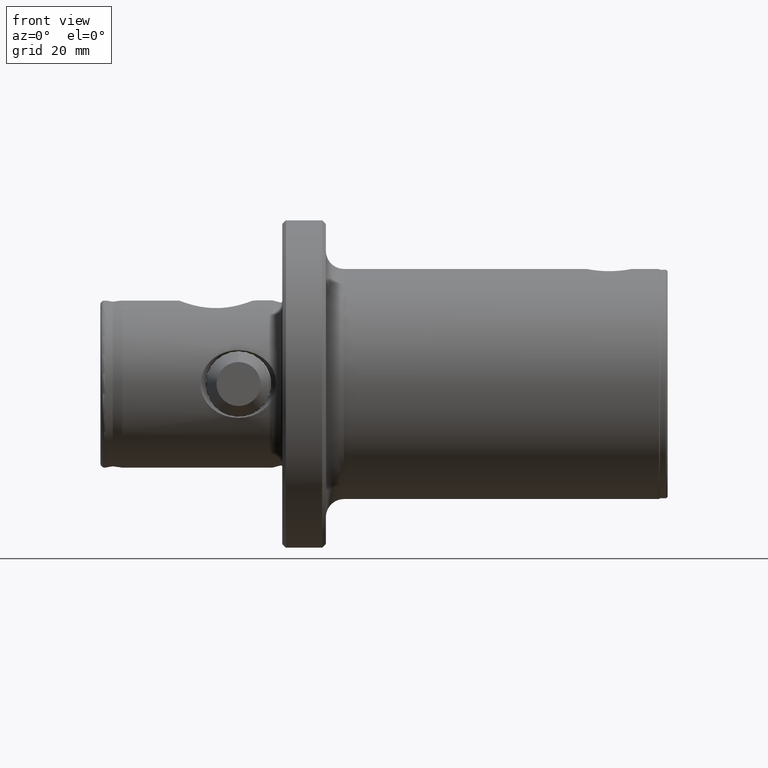
[diagram: clean part render]
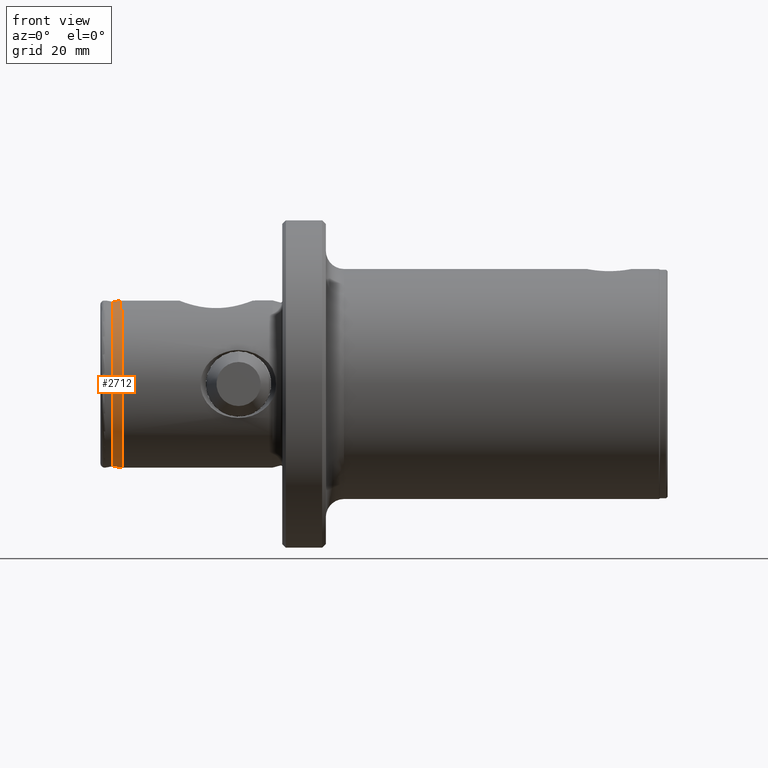
[diagram: same view with one face highlighted and labeled with its STEP entity id]
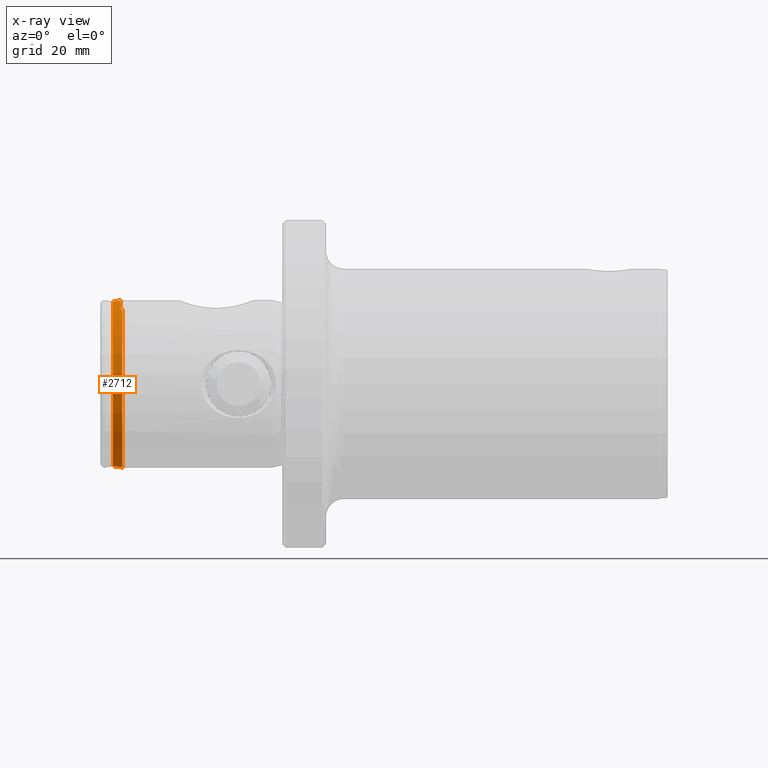
[diagram: x-ray of the same camera — body ghosted, the highlighted face saturated]
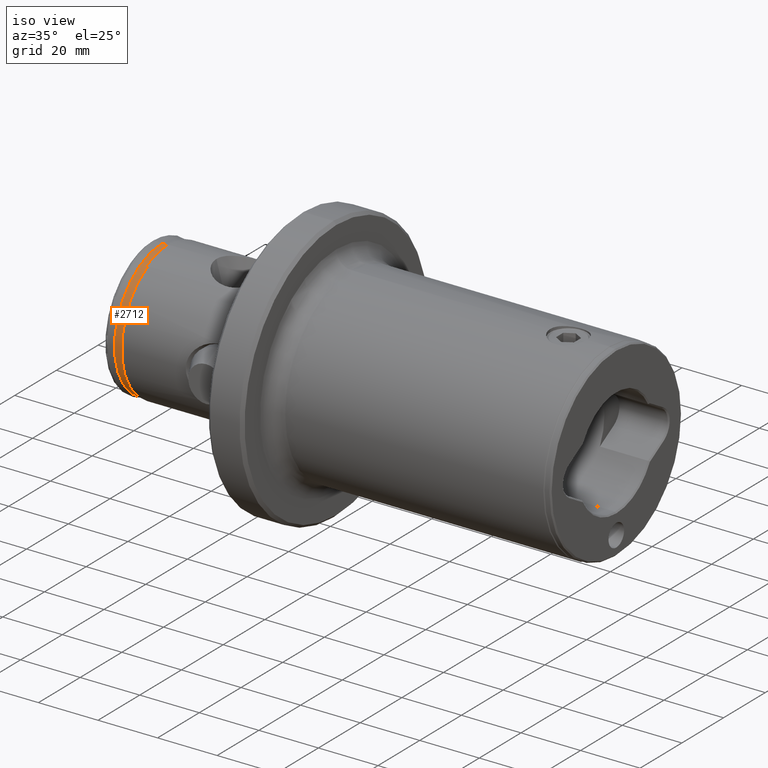
[diagram: same view with one face highlighted and labeled with its STEP entity id]
A machine part, front view. The second image highlights one B-rep face of the part: STEP entity #2712.
The next image is the same camera in x-ray: the body ghosted, the highlighted face saturated — about 0% of this face is hidden behind the body in this view.
A second angle (iso view) of the same face is appended — the face is thin or edge-on in the first view.
In plain terms, the highlighted conical surface has half-angle 8 deg.
Its self-contained STEP definition (entity closure, byte-faithful):
#59 = CONICAL_SURFACE ( 'NONE', #3510, 22.99999999999998600, 0.1396263401595466700 ) ;
#72 = CARTESIAN_POINT ( 'NONE',  ( 6.000000000000000000, 0.0000000000000000000, -22.99999999999998600 ) ) ;
#92 = ORIENTED_EDGE ( 'NONE', *, *, #3353, .F. ) ;
#131 = DIRECTION ( 'NONE',  ( 0.0000000000000000000, 0.0000000000000000000, 1.000000000000000000 ) ) ;
#194 = FACE_OUTER_BOUND ( 'NONE', #5322, .T. ) ;
#327 = DIRECTION ( 'NONE',  ( 0.9902680687415703600, 1.704378926181559700E-017, 0.1391731009600657400 ) ) ;
#375 = CARTESIAN_POINT ( 'NONE',  ( 5.611569951539119700, -10.50000000000000000, 20.40200584880143400 ) ) ;
#412 = EDGE_CURVE ( 'NONE', #2665, #3993, #3650, .T. ) ;
#416 = VERTEX_POINT ( 'NONE', #2048 ) ;
#518 = CARTESIAN_POINT ( 'NONE',  ( 5.557014176752583800, -10.49999999999999100, 20.39338192968112700 ) ) ;
#658 = CARTESIAN_POINT ( 'NONE',  ( 5.506549167345434100, -3.155097331512934900, 22.71707309116323600 ) ) ;
#693 = ORIENTED_EDGE ( 'NONE', *, *, #1809, .F. ) ;
#1088 = CARTESIAN_POINT ( 'NONE',  ( 5.511491858666889100, -4.502935528960202700, 22.48951595439582700 ) ) ;
#1092 = DIRECTION ( 'NONE',  ( 1.000000000000000000, 0.0000000000000000000, 0.0000000000000000000 ) ) ;
#1149 = VERTEX_POINT ( 'NONE', #518 ) ;
#1168 = CARTESIAN_POINT ( 'NONE',  ( 6.000000000000000000, 0.0000000000000000000, 0.0000000000000000000 ) ) ;
#1367 = VECTOR ( 'NONE', #3449, 999.9999999999998900 ) ;
#1447 = CIRCLE ( 'NONE', #3744, 22.99999999999998600 ) ;
#1495 = AXIS2_PLACEMENT_3D ( 'NONE', #5186, #2676, #131 ) ;
#1498 = CARTESIAN_POINT ( 'NONE',  ( 5.525156729224059800, -7.168370762833353300, 21.86037261288042500 ) ) ;
#1580 = DIRECTION ( 'NONE',  ( 0.0000000000000000000, 0.0000000000000000000, 1.000000000000000000 ) ) ;
#1614 = ORIENTED_EDGE ( 'NONE', *, *, #4017, .F. ) ;
#1651 = CARTESIAN_POINT ( 'NONE',  ( 5.666125903117055000, -10.50000000000000000, 20.41062864959544100 ) ) ;
#1745 = VERTEX_POINT ( 'NONE', #2831 ) ;
#1766 = EDGE_CURVE ( 'NONE', #416, #2679, #1447, .T. ) ;
#1809 = EDGE_CURVE ( 'NONE', #1149, #2679, #5195, .T. ) ;
#1811 = ORIENTED_EDGE ( 'NONE', *, *, #1766, .T. ) ;
#1922 = CARTESIAN_POINT ( 'NONE',  ( 5.501924119433202700, -0.9033963053425115900, 22.93000000000000000 ) ) ;
#1938 = CARTESIAN_POINT ( 'NONE',  ( 5.557014176752583800, -10.49999999999999100, 20.39338192968112700 ) ) ;
#2048 = CARTESIAN_POINT ( 'NONE',  ( 6.000000000000000000, 2.816687638038911200E-015, -22.99999999999998600 ) ) ;
#2106 = CARTESIAN_POINT ( 'NONE',  ( 5.813787508864463900, -10.50000000000000000, 20.43396410529406300 ) ) ;
#2505 = CARTESIAN_POINT ( 'NONE',  ( 5.557014176752583800, -10.49999999999999100, 20.39338192968112700 ) ) ;
#2525 = CARTESIAN_POINT ( 'NONE',  ( 6.000000000000000000, -10.50000000000000000, 20.46338192968110900 ) ) ;
#2665 = VERTEX_POINT ( 'NONE', #4013 ) ;
#2676 = DIRECTION ( 'NONE',  ( -1.000000000000000000, -0.0000000000000000000, -0.0000000000000000000 ) ) ;
#2679 = VERTEX_POINT ( 'NONE', #4031 ) ;
#2712 = ADVANCED_FACE ( 'NONE', ( #194 ), #59, .T. ) ;
#2831 = CARTESIAN_POINT ( 'NONE',  ( 3.387372485071338300, 0.0000000000000000000, -22.63281914828547800 ) ) ;
#3192 = CARTESIAN_POINT ( 'NONE',  ( 5.503076247807878300, -1.805101285263363200, 22.87695984838262200 ) ) ;
#3218 = DIRECTION ( 'NONE',  ( 0.0000000000000000000, 0.0000000000000000000, -1.000000000000000000 ) ) ;
#3250 = VECTOR ( 'NONE', #327, 999.9999999999998900 ) ;
#3271 = EDGE_CURVE ( 'NONE', #1745, #416, #4730, .T. ) ;
#3303 = B_SPLINE_CURVE_WITH_KNOTS ( 'NONE', 3,
 ( #3593, #1922, #3192, #658, #3612, #1088, #4028, #1498, #4462, #1938 ),
 .UNSPECIFIED., .F., .F.,
 ( 4, 2, 2, 2, 4 ),
 ( 0.01084930892373658900, 0.01355812517696584500, 0.01491253330358047400, 0.01626694143019510200, 0.02168457393665361400 ),
 .UNSPECIFIED. ) ;
#3353 = EDGE_CURVE ( 'NONE', #1745, #2665, #3478, .T. ) ;
#3446 = ORIENTED_EDGE ( 'NONE', *, *, #412, .F. ) ;
#3449 = DIRECTION ( 'NONE',  ( 0.9902680687415703600, 0.0000000000000000000, -0.1391731009600657400 ) ) ;
#3478 = CIRCLE ( 'NONE', #1495, 22.63281914828547800 ) ;
#3510 = AXIS2_PLACEMENT_3D ( 'NONE', #3626, #1092, #3218 ) ;
#3593 = CARTESIAN_POINT ( 'NONE',  ( 5.501924119433200900, -1.620352583181602200E-013, 22.93000000000000000 ) ) ;
#3612 = CARTESIAN_POINT ( 'NONE',  ( 5.507998335330698000, -3.604668019525830500, 22.65035556375866600 ) ) ;
#3626 = CARTESIAN_POINT ( 'NONE',  ( 6.000000000000000000, 0.0000000000000000000, 0.0000000000000000000 ) ) ;
#3650 = LINE ( 'NONE', #5401, #3250 ) ;
#3744 = AXIS2_PLACEMENT_3D ( 'NONE', #1168, #4110, #1580 ) ;
#3864 = ORIENTED_EDGE ( 'NONE', *, *, #3271, .T. ) ;
#3993 = VERTEX_POINT ( 'NONE', #5266 ) ;
#4013 = CARTESIAN_POINT ( 'NONE',  ( 3.387372485071338300, 2.794204295300892000E-015, 22.63281914828547800 ) ) ;
#4017 = EDGE_CURVE ( 'NONE', #3993, #1149, #3303, .T. ) ;
#4028 = CARTESIAN_POINT ( 'NONE',  ( 5.513540485447443000, -4.952053985602630000, 22.39519719965759500 ) ) ;
#4031 = CARTESIAN_POINT ( 'NONE',  ( 6.000000000000000000, -10.50000000000000000, 20.46338192968110900 ) ) ;
#4110 = DIRECTION ( 'NONE',  ( -1.000000000000000000, -0.0000000000000000000, -0.0000000000000000000 ) ) ;
#4462 = CARTESIAN_POINT ( 'NONE',  ( 5.538855646650372200, -8.870238849765906200, 21.22963138914300200 ) ) ;
#4603 = CARTESIAN_POINT ( 'NONE',  ( 5.720682030750333000, -10.50000000000000000, 20.41925033627581200 ) ) ;
#4730 = LINE ( 'NONE', #72, #1367 ) ;
#5028 = CARTESIAN_POINT ( 'NONE',  ( 5.906893499824388300, -10.50000000000000000, 20.44867462949950400 ) ) ;
#5186 = CARTESIAN_POINT ( 'NONE',  ( 3.387372485071338300, 0.0000000000000000000, 0.0000000000000000000 ) ) ;
#5195 = B_SPLINE_CURVE_WITH_KNOTS ( 'NONE', 3,
 ( #2505, #375, #1651, #4603, #2106, #5028, #2525 ),
 .UNSPECIFIED., .F., .F.,
 ( 4, 3, 4 ),
 ( 0.006480747183685177600, 0.006646446674954809400, 0.006929229401062363300 ),
 .UNSPECIFIED. ) ;
#5266 = CARTESIAN_POINT ( 'NONE',  ( 5.501924119433200900, -1.620352583181602200E-013, 22.93000000000000000 ) ) ;
#5322 = EDGE_LOOP ( 'NONE', ( #3446, #92, #3864, #1811, #693, #1614 ) ) ;
#5401 = CARTESIAN_POINT ( 'NONE',  ( 6.000000000000000000, 2.816687638038910800E-015, 22.99999999999998600 ) ) ;